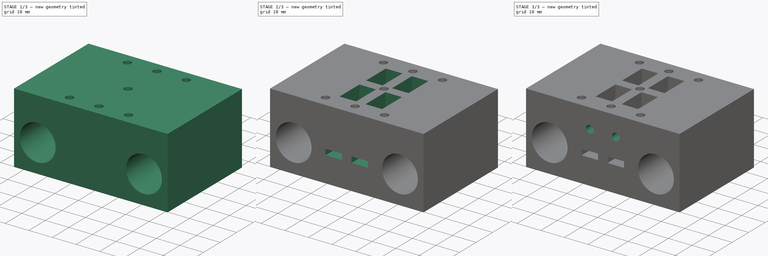
[diagram: build sequence overview — one tinted view per stage of 3, left to right]
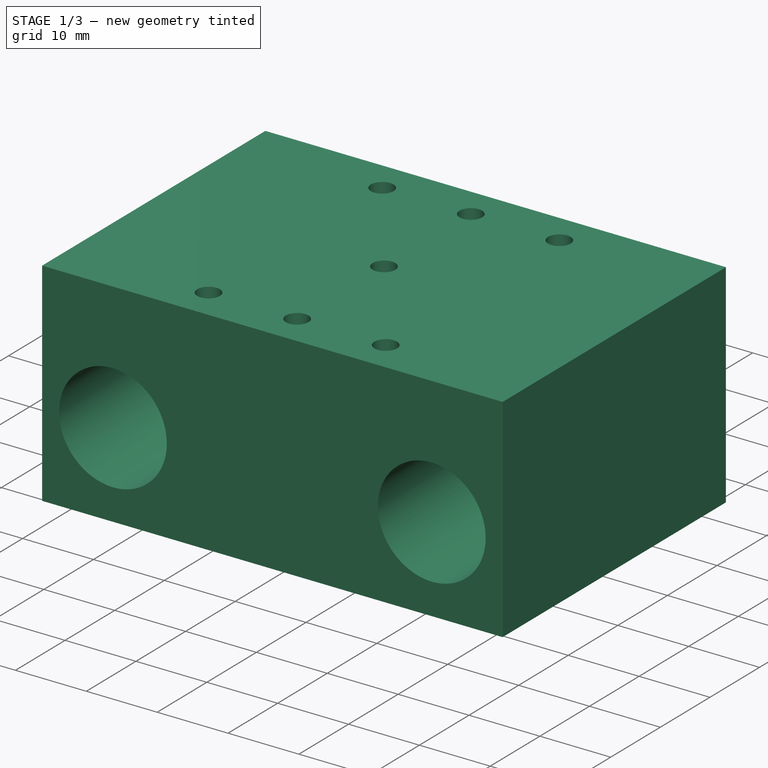
[diagram: stage 1 of 3 — iso view after this stage's code; geometry added in this stage tinted green]
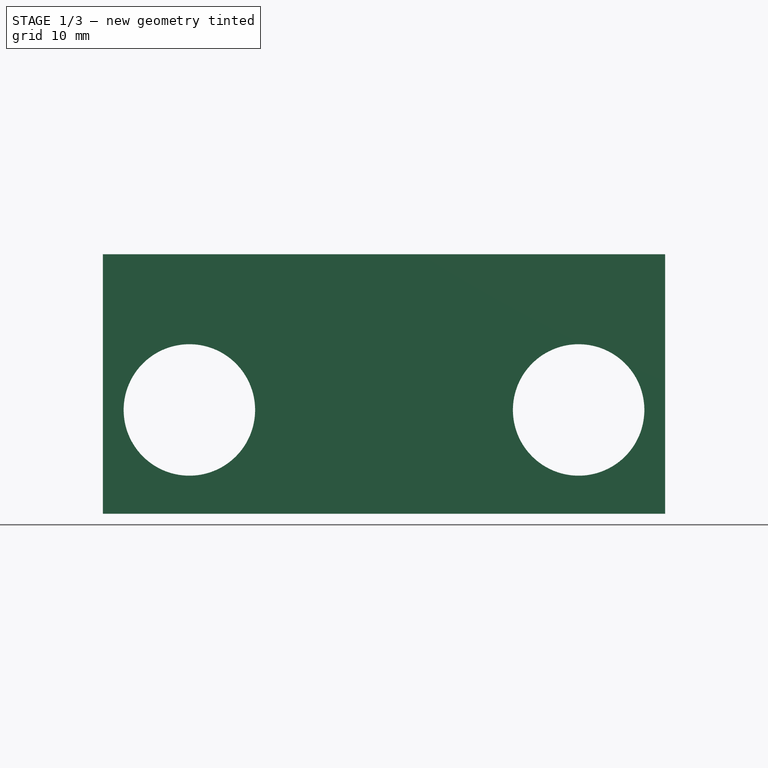
[diagram: stage 1 of 3 — front view after this stage's code; geometry added in this stage tinted green]
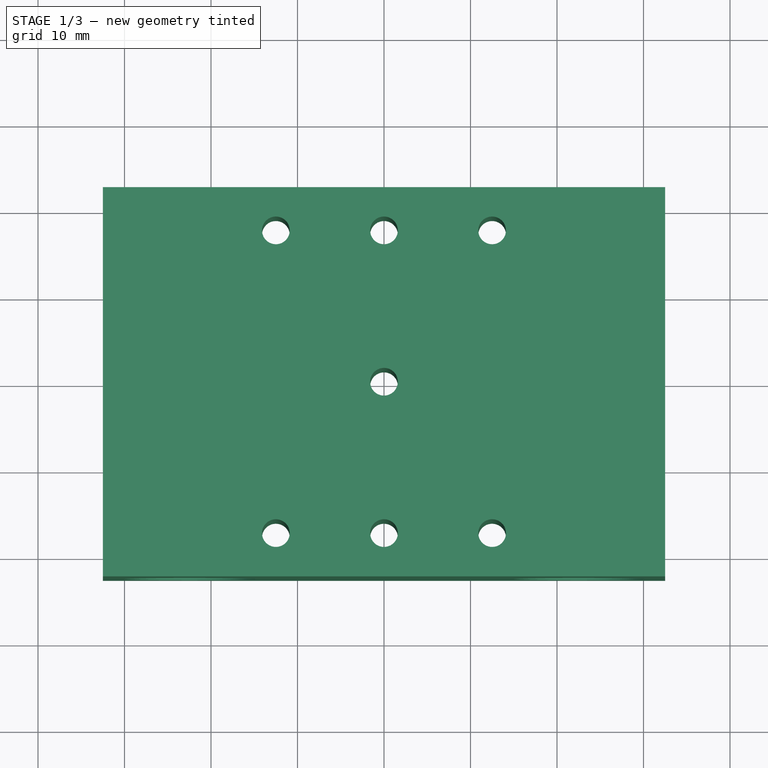
[diagram: stage 1 of 3 — top view after this stage's code; geometry added in this stage tinted green]
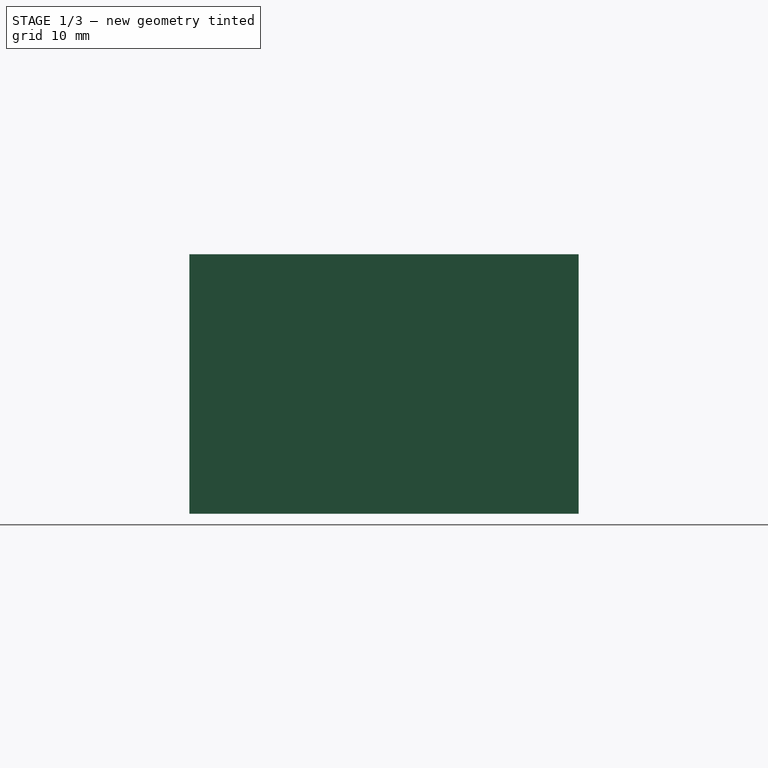
[diagram: stage 1 of 3 — right view after this stage's code; geometry added in this stage tinted green]
FCSTD DOCUMENT  (FreeCAD 0.19R20209 (Git))
Label: X-Axel-Bearing_030
License: Creative Commons Attribution
LicenseURL: http://creativecommons.org/licenses/by/4.0/
objects: Sketcher::SketchObject×6, PartDesign::Pocket×5, PartDesign::Plane×3, PartDesign::Pad×1, PartDesign::Body×1
note: 22 computed .brp shape members not serialized (recipe doc carries the construction recipe); baked Part::Feature solids carry a one-line shape summary decoded from their .brp

FEATURE [Sketcher::SketchObject] Sketch
  MapMode = 5
  Placement = pos=(0,0,0) rot=(1,0,0;1.5708rad)
  Support = -> [XZ_Plane]
  sketch-geometry (6):
    g0: LineSegment StartX=-32.5 StartY=18 StartZ=0 EndX=32.5 EndY=18 EndZ=0
    g1: LineSegment StartX=32.5 StartY=18 StartZ=0 EndX=32.5 EndY=-12 EndZ=0
    g2: LineSegment StartX=32.5 StartY=-12 StartZ=0 EndX=-32.5 EndY=-12 EndZ=0
    g3: LineSegment StartX=-32.5 StartY=-12 StartZ=0 EndX=-32.5 EndY=18 EndZ=0
    g4: Circle CenterX=-22.5 CenterY=0 CenterZ=0 NormalX=0 NormalY=0 NormalZ=1 AngleXU=0 Radius=7.6
    g5: Circle CenterX=22.5 CenterY=0 CenterZ=0 NormalX=0 NormalY=0 NormalZ=1 AngleXU=0 Radius=7.6
  constraints (16):
    c: Coincident(g0,g1)
    c: Coincident(g1,g2)
    c: Coincident(g2,g3)
    c: Coincident(g3,g0)
    c: Horizontal(g0)
    c: Vertical(g1)
    c: Vertical(g3)
    c: Symmetric(g2,g1,g-2)
    c: DistanceX(g2,g2) = 65
    c: DistanceY(g3,g3) = 30
    c: DistanceY(g2,g-1) = 12
    c: Equal(g5,g4)
    c: Horizontal(g5,g4)
    c: DistanceX(g4,g5) = 45
    c: Symmetric(g4,g5,g-1)
    c: Diameter(g4) = 15.2
FEATURE [PartDesign::Pad] Pad
  Length = 45
  Length2 = 100
  Midplane = true
  Placement = pos=(0,0,0) rot=(1,0,0;1.5708rad)
  Profile = -> Sketch
  Refine = true
  Type = 0
FEATURE [Sketcher::SketchObject] Sketch001
  MapMode = 5
  Support = -> [XY_Plane]
  sketch-geometry (11):
    g0: LineSegment [constr] StartX=-12.5 StartY=17.5 StartZ=0 EndX=12.5 EndY=17.5 EndZ=0
    g1: LineSegment [constr] StartX=12.5 StartY=17.5 StartZ=0 EndX=12.5 EndY=-17.5 EndZ=0
    g2: LineSegment [constr] StartX=12.5 StartY=-17.5 StartZ=0 EndX=-12.5 EndY=-17.5 EndZ=0
    g3: LineSegment [constr] StartX=-12.5 StartY=-17.5 StartZ=0 EndX=-12.5 EndY=17.5 EndZ=0
    g4: Circle CenterX=-12.5 CenterY=17.5 CenterZ=0 NormalX=0 NormalY=0 NormalZ=1 AngleXU=0 Radius=1.6
    g5: Circle CenterX=12.5 CenterY=17.5 CenterZ=0 NormalX=0 NormalY=0 NormalZ=1 AngleXU=0 Radius=1.6
    g6: Circle CenterX=0 CenterY=0 CenterZ=0 NormalX=0 NormalY=0 NormalZ=1 AngleXU=0 Radius=1.6
    g7: Circle CenterX=-12.5 CenterY=-17.5 CenterZ=0 NormalX=0 NormalY=0 NormalZ=1 AngleXU=0 Radius=1.6
    g8: Circle CenterX=12.5 CenterY=-17.5 CenterZ=0 NormalX=0 NormalY=0 NormalZ=1 AngleXU=0 Radius=1.6
    g9: Circle CenterX=3e-16 CenterY=17.5 CenterZ=0 NormalX=0 NormalY=0 NormalZ=1 AngleXU=0 Radius=1.6
    g10: Circle CenterX=1e-16 CenterY=-17.5 CenterZ=0 NormalX=0 NormalY=0 NormalZ=1 AngleXU=0 Radius=1.6
  constraints (25):
    c: Coincident(g0,g1)
    c: Coincident(g1,g2)
    c: Coincident(g2,g3)
    c: Coincident(g3,g0)
    c: Horizontal(g0)
    c: Horizontal(g2)
    c: Vertical(g1)
    c: Vertical(g3)
    c: Symmetric(g1,g0,g-1)
    c: DistanceX(g0,g0) = 25
    c: DistanceY(g3,g3) = 35
    c: Equal(g4,g5)
    c: Equal(g5,g6)
    c: Equal(g6,g7)
    c: Equal(g7,g8)
    c: Equal(g8,g9)
    c: Equal(g9,g10)
    c: Diameter(g4) = 3.2
    c: Coincident(g4,g0)
    c: Coincident(g5,g0)
    c: Coincident(g6,g-1)
    c: Coincident(g7,g2)
    c: Coincident(g8,g1)
    c: Symmetric(g4,g5,g9)
    c: Symmetric(g7,g8,g10)
FEATURE [PartDesign::Pocket] Pocket
  BaseFeature = -> Pad
  Length = 5
  Length2 = 100
  Midplane = true
  Placement = pos=(0,0,0) rot=(1,0,0;1.5708rad)
  Profile = -> Sketch001
  Refine = true
  Type = 1
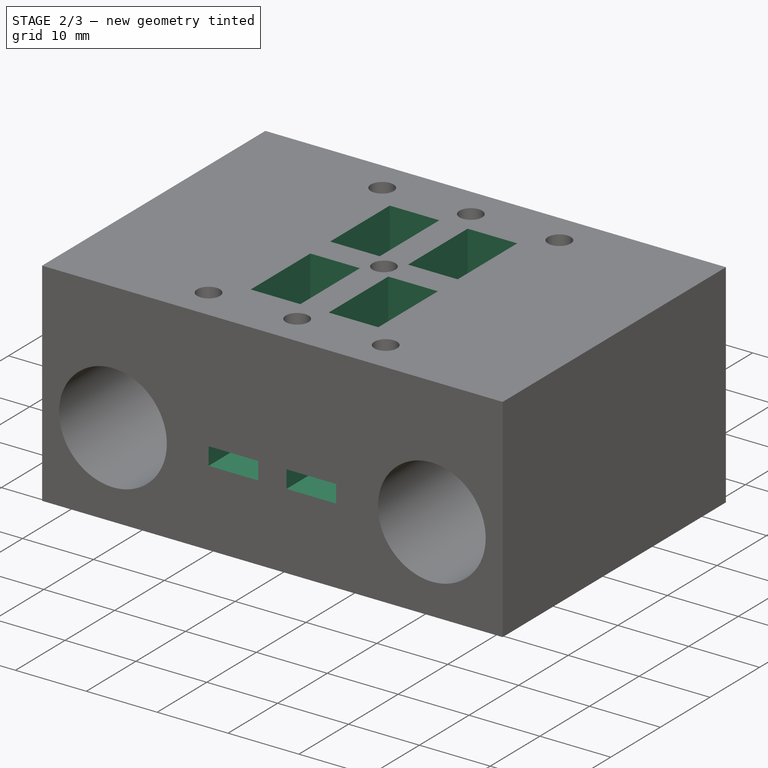
[diagram: stage 2 of 3 — iso view after this stage's code; geometry added in this stage tinted green]
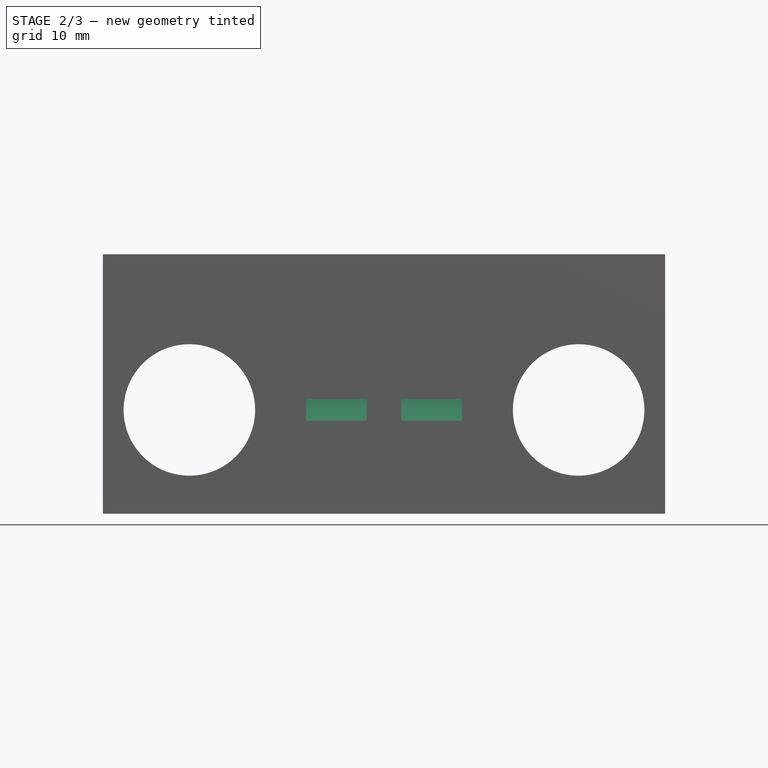
[diagram: stage 2 of 3 — front view after this stage's code; geometry added in this stage tinted green]
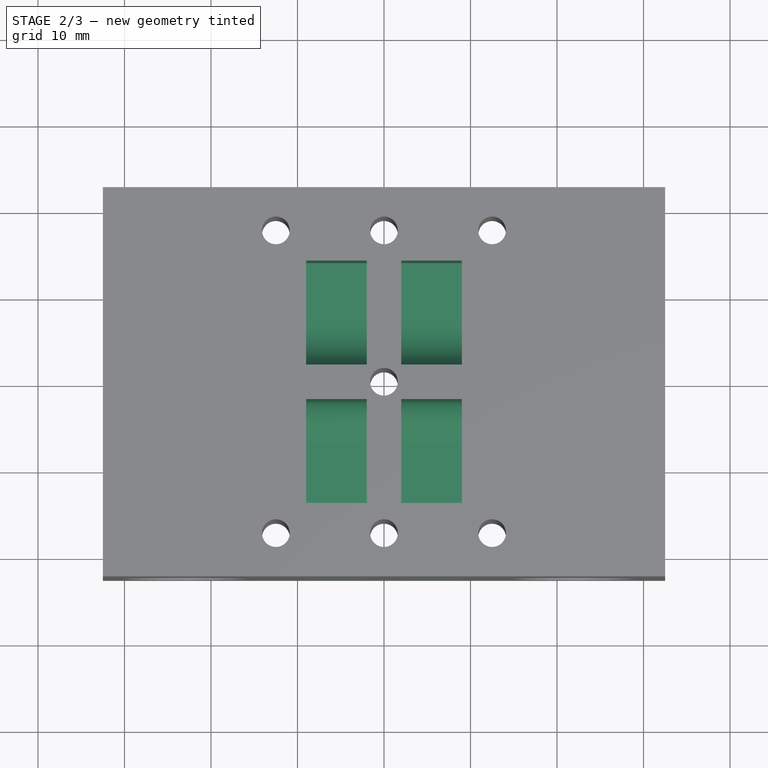
[diagram: stage 2 of 3 — top view after this stage's code; geometry added in this stage tinted green]
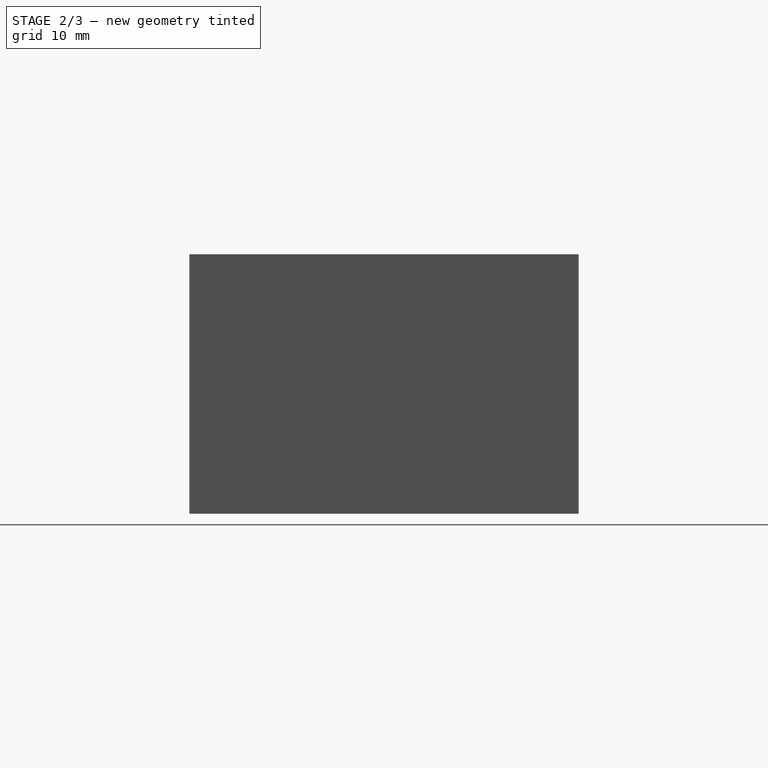
[diagram: stage 2 of 3 — right view after this stage's code; geometry added in this stage tinted green]
FEATURE [PartDesign::Plane] DatumPlane
  AttachmentOffset = pos=(0,0,2) rot=(0,0,1;0rad)
  Length = 60
  MapMode = 5
  Placement = pos=(2,-4e-16,4e-16) rot=(0.57735,0.57735,0.57735;2.0944rad)
  ResizeMode = 0
  Support = -> [YZ_Plane]
  Width = 60
FEATURE [Sketcher::SketchObject] Sketch002
  ExternalGeometry = -> [Pocket]
  MapMode = 5
  Placement = pos=(2,-4e-16,4e-16) rot=(0.57735,0.57735,0.57735;2.0944rad)
  Support = -> [DatumPlane]
  sketch-geometry (14):
    g0: ArcOfCircle CenterX=-7 CenterY=3.75 CenterZ=0 NormalX=0 NormalY=0 NormalZ=1 AngleXU=0 Radius=5 StartAngle=4.71239 EndAngle=6.28319
    g1: LineSegment StartX=-7 StartY=-1.25 StartZ=0 EndX=-22.5 EndY=-1.25 EndZ=0
    g2: LineSegment StartX=-22.5 StartY=-1.25 StartZ=0 EndX=-22.5 EndY=1.25 EndZ=0
    g3: LineSegment StartX=-22.5 StartY=1.25 StartZ=0 EndX=-14 EndY=1.25 EndZ=0
    g4: LineSegment StartX=-14 StartY=1.25 StartZ=0 EndX=-14 EndY=18 EndZ=0
    g5: LineSegment StartX=-14 StartY=18 StartZ=0 EndX=-2 EndY=18 EndZ=0
    g6: LineSegment StartX=-2 StartY=18 StartZ=0 EndX=-2 EndY=3.75 EndZ=0
    g7: ArcOfCircle CenterX=7 CenterY=3.75 CenterZ=0 NormalX=0 NormalY=0 NormalZ=1 AngleXU=0 Radius=5 StartAngle=3.14159 EndAngle=4.71239
    g8: LineSegment StartX=2 StartY=3.75 StartZ=0 EndX=2 EndY=18 EndZ=0
    g9: LineSegment StartX=2 StartY=18 StartZ=0 EndX=14 EndY=18 EndZ=0
    g10: LineSegment StartX=14 StartY=18 StartZ=0 EndX=14 EndY=1.25 EndZ=0
    g11: LineSegment StartX=14 StartY=1.25 StartZ=0 EndX=22.5 EndY=1.25 EndZ=0
    g12: LineSegment StartX=22.5 StartY=1.25 StartZ=0 EndX=22.5 EndY=-1.25 EndZ=0
    g13: LineSegment StartX=22.5 StartY=-1.25 StartZ=0 EndX=7 EndY=-1.25 EndZ=0
  constraints (42):
    c: Angle(g0) = 1.5708
    c: Horizontal(g0,g0)
    c: Radius(g0) = 5
    c: DistanceX(g0,g-1) = 2
    c: Horizontal(g1)
    c: Coincident(g1,g2)
    c: Coincident(g2,g3)
    c: Horizontal(g3)
    c: Coincident(g3,g4)
    c: Vertical(g4)
    c: Coincident(g4,g5)
    c: Horizontal(g5)
    c: Coincident(g5,g6)
    c: Vertical(g6)
    c: Symmetric(g2,g1,g-1)
    c: DistanceY(g2,g2) = 2.5
    c: Coincident(g0,g1)
    c: Coincident(g6,g0)
    c: DistanceX(g5,g5) = 12
    c: PointOnObject(g4,g-3)
    c: Vertical(g2,g-3)
    c: Horizontal(g7,g7)
    c: Equal(g0,g7)
    c: Angle(g7) = 1.5708
    c: Symmetric(g7,g0,g-2)
    c: Vertical(g8)
    c: Coincident(g8,g9)
    c: Horizontal(g9)
    c: Coincident(g9,g10)
    c: Vertical(g10)
    c: Coincident(g10,g11)
    c: Horizontal(g11)
    c: Coincident(g11,g12)
    c: Vertical(g12)
    c: Coincident(g12,g13)
    c: Horizontal(g13)
    c: Equal(g12,g2)
    c: Coincident(g13,g7)
    c: Equal(g9,g5)
    c: Coincident(g8,g7)
    c: Horizontal(g8,g4)
    c: Vertical(g-3,g11)
FEATURE [PartDesign::Pocket] Pocket001
  BaseFeature = -> Pocket
  Length = 7
  Length2 = 100
  Placement = pos=(0,0,0) rot=(1,0,0;1.5708rad)
  Profile = -> Sketch002
  Refine = true
  Reversed = true
  Type = 0
FEATURE [PartDesign::Plane] DatumPlane001
  AttachmentOffset = pos=(0,0,-2) rot=(0,0,1;0rad)
  Length = 60
  MapMode = 5
  Placement = pos=(-2,4e-16,-4e-16) rot=(0.57735,0.57735,0.57735;2.0944rad)
  ResizeMode = 0
  Support = -> [YZ_Plane]
  Width = 60
FEATURE [Sketcher::SketchObject] Sketch003
  ExternalGeometry = -> [Pocket001]
  MapMode = 5
  Placement = pos=(-2,4e-16,-4e-16) rot=(0.57735,0.57735,0.57735;2.0944rad)
  Support = -> [DatumPlane001]
  sketch-geometry (14):
    g0: LineSegment StartX=-7 StartY=-1.25 StartZ=0 EndX=-22.5 EndY=-1.25 EndZ=0
    g1: LineSegment StartX=-22.5 StartY=-1.25 StartZ=0 EndX=-22.5 EndY=1.25 EndZ=0
    g2: LineSegment StartX=-22.5 StartY=1.25 StartZ=0 EndX=-14 EndY=1.25 EndZ=0
    g3: LineSegment StartX=-14 StartY=1.25 StartZ=0 EndX=-14 EndY=18 EndZ=0
    g4: LineSegment StartX=-14 StartY=18 StartZ=0 EndX=-2 EndY=18 EndZ=0
    g5: LineSegment StartX=-2 StartY=18 StartZ=0 EndX=-2 EndY=3.75 EndZ=0
    g6: LineSegment StartX=2 StartY=3.75 StartZ=0 EndX=2 EndY=18 EndZ=0
    g7: LineSegment StartX=2 StartY=18 StartZ=0 EndX=14 EndY=18 EndZ=0
    g8: LineSegment StartX=14 StartY=18 StartZ=0 EndX=14 EndY=1.25 EndZ=0
    g9: LineSegment StartX=14 StartY=1.25 StartZ=0 EndX=22.5 EndY=1.25 EndZ=0
    g10: LineSegment StartX=22.5 StartY=1.25 StartZ=0 EndX=22.5 EndY=-1.25 EndZ=0
    g11: LineSegment StartX=22.5 StartY=-1.25 StartZ=0 EndX=7 EndY=-1.25 EndZ=0
    g12: ArcOfCircle CenterX=-7 CenterY=3.75 CenterZ=0 NormalX=0 NormalY=0 NormalZ=1 AngleXU=0 Radius=5 StartAngle=4.71239 EndAngle=6.28319
    g13: ArcOfCircle CenterX=7 CenterY=3.75 CenterZ=0 NormalX=0 NormalY=0 NormalZ=1 AngleXU=0 Radius=5 StartAngle=3.14159 EndAngle=4.71239
  constraints (38):
    c: Horizontal(g0)
    c: Coincident(g0,g1)
    c: Vertical(g1)
    c: Coincident(g1,g2)
    c: Coincident(g2,g3)
    c: Vertical(g3)
    c: Coincident(g3,g4)
    c: Horizontal(g4)
    c: Coincident(g4,g5)
    c: Vertical(g5)
    c: Vertical(g6)
    c: Coincident(g6,g7)
    c: Horizontal(g7)
    c: Coincident(g7,g8)
    c: Vertical(g8)
    c: Coincident(g8,g9)
    c: Horizontal(g9)
    c: Coincident(g9,g10)
    c: Vertical(g10)
    c: Coincident(g10,g11)
    c: Horizontal(g11)
    c: Coincident(g6,g-4)
    c: Coincident(g-3,g5)
    c: Coincident(g0,g-3)
    c: Coincident(g11,g-4)
    c: Coincident(g2,g-6)
    c: Coincident(g1,g-6)
    c: Horizontal(g9,g1)
    c: Vertical(g9,g-5)
    c: Equal(g2,g9)
    c: Horizontal(g-5,g3)
    c: Horizontal(g3,g6)
    c: Coincident(g12,g5)
    c: Angle(g12) = 1.5708
    c: Coincident(g12,g-3)
    c: Angle(g13) = 1.5708
    c: Coincident(g13,g11)
    c: Coincident(g13,g-4)
FEATURE [PartDesign::Pocket] Pocket002
  BaseFeature = -> Pocket001
  Length = 7
  Length2 = 100
  Placement = pos=(0,0,0) rot=(1,0,0;1.5708rad)
  Profile = -> Sketch003
  Refine = true
  Type = 0
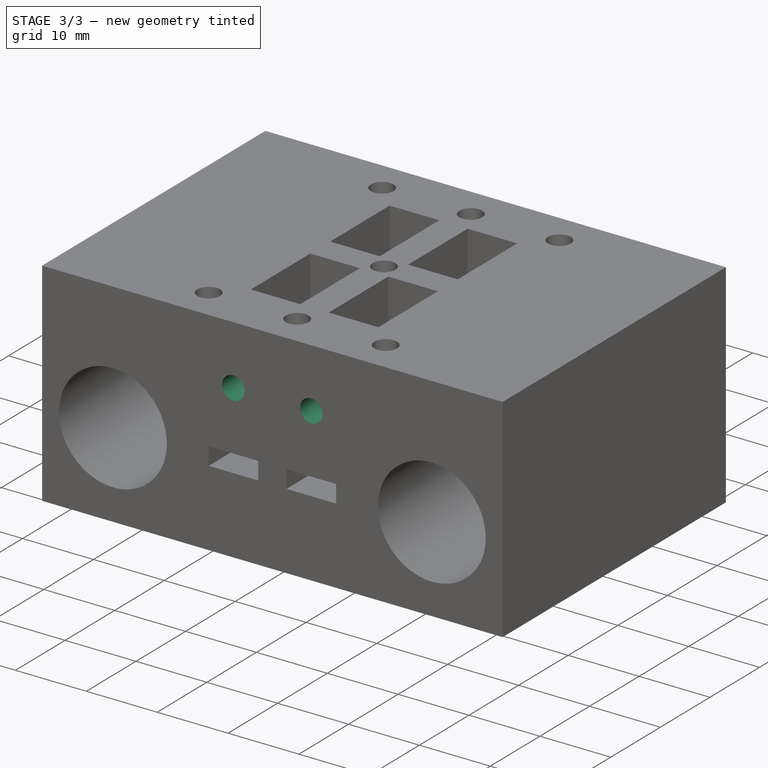
[diagram: stage 3 of 3 — iso view after this stage's code; geometry added in this stage tinted green]
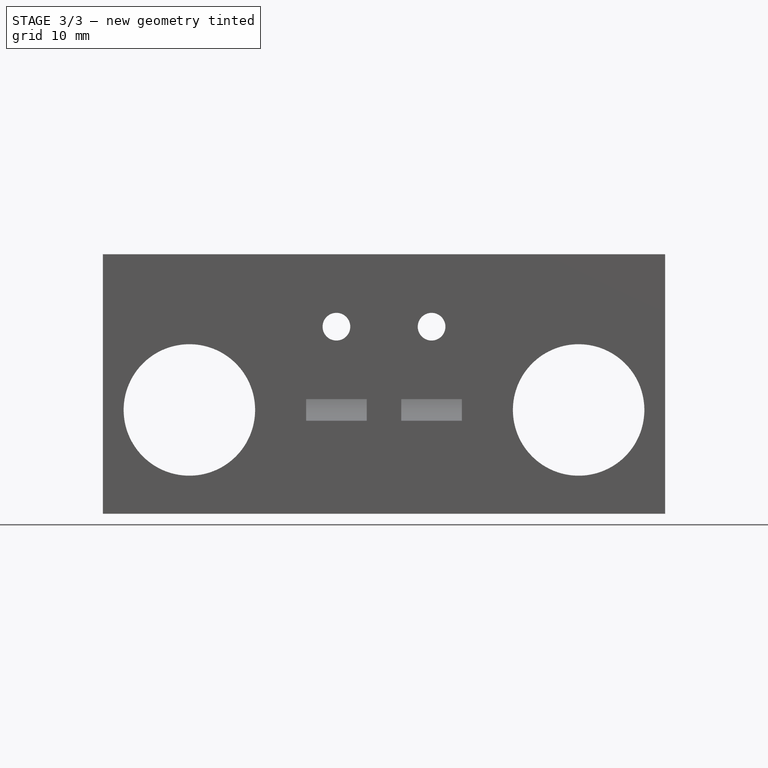
[diagram: stage 3 of 3 — front view after this stage's code; geometry added in this stage tinted green]
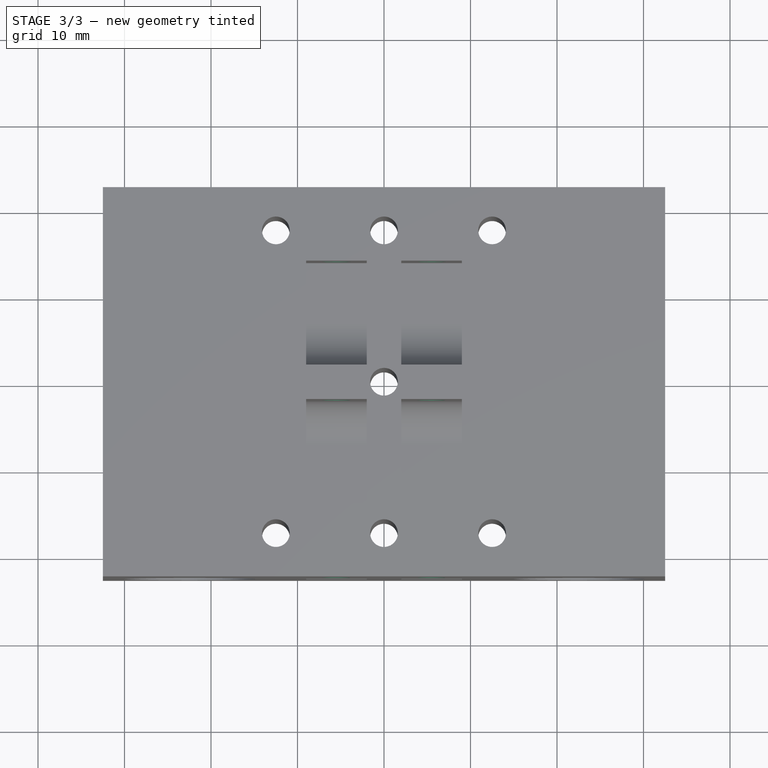
[diagram: stage 3 of 3 — top view after this stage's code; geometry added in this stage tinted green]
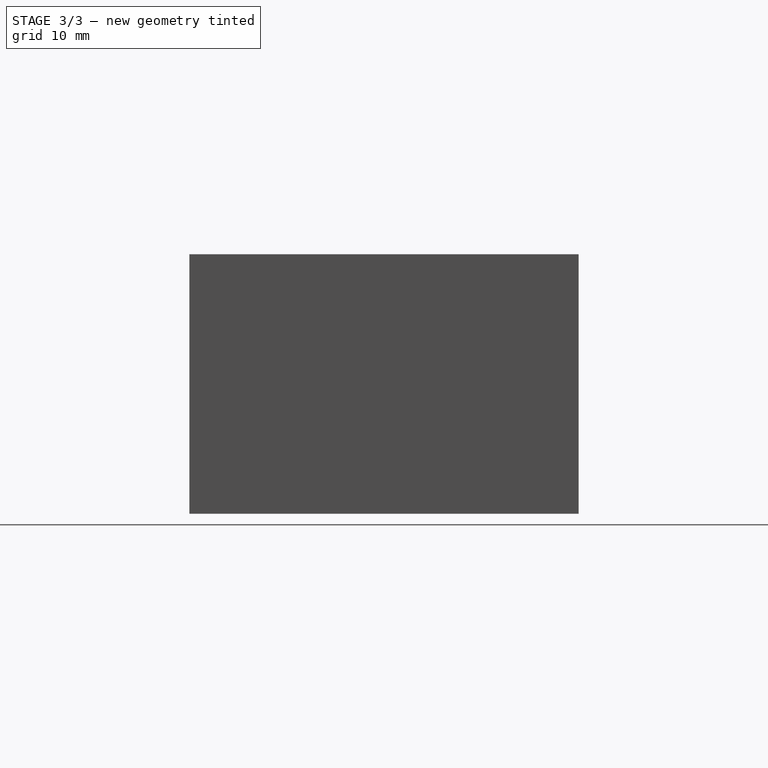
[diagram: stage 3 of 3 — right view after this stage's code; geometry added in this stage tinted green]
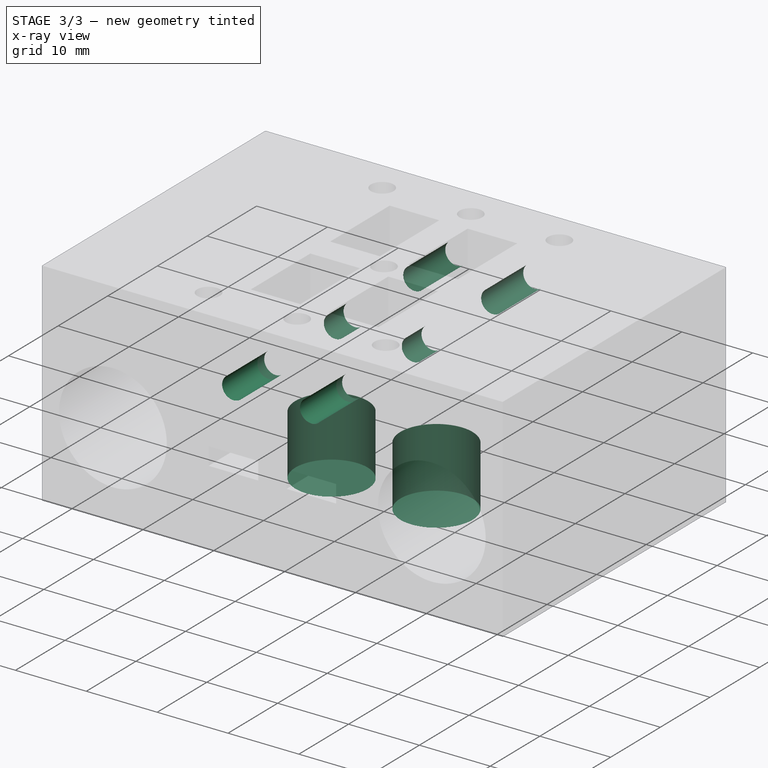
[diagram: stage 3 of 3 — x-ray composite at the iso view; earlier geometry ghosted, this stage's added geometry solid]
FEATURE [PartDesign::Plane] DatumPlane002
  AttachmentOffset = pos=(0,0,-11) rot=(0,0,1;0rad)
  Length = 76.4018
  MapMode = 5
  Placement = pos=(0,0,-11) rot=(0,0,1;0rad)
  ResizeMode = 0
  Support = -> [XY_Plane]
  Width = 61.4018
FEATURE [Sketcher::SketchObject] Sketch004
  MapMode = 5
  Placement = pos=(0,0,-11) rot=(0,0,1;0rad)
  Support = -> [DatumPlane002]
  sketch-geometry (2):
    g0: Circle CenterX=-7.4 CenterY=0 CenterZ=0 NormalX=0 NormalY=0 NormalZ=1 AngleXU=0 Radius=5.1
    g1: Circle CenterX=7.4 CenterY=0 CenterZ=0 NormalX=0 NormalY=0 NormalZ=1 AngleXU=0 Radius=5.1
  constraints (5):
    c: Equal(g1,g0)
    c: Diameter(g0) = 10.2
    c: Horizontal(g1,g0)
    c: Symmetric(g0,g1,g-1)
    c: DistanceX(g0,g1) = 14.8
FEATURE [PartDesign::Pocket] Pocket003
  BaseFeature = -> Pocket002
  Length = 8.5
  Length2 = 100
  Placement = pos=(0,0,0) rot=(1,0,0;1.5708rad)
  Profile = -> Sketch004
  Refine = true
  Reversed = true
  Type = 0
FEATURE [Sketcher::SketchObject] Sketch005
  ExternalGeometry = -> [Pocket003]
  MapMode = 5
  Placement = pos=(0,0,0) rot=(1,0,0;1.5708rad)
  Support = -> [XZ_Plane]
  sketch-geometry (4):
    g0: GeomPoint X=-5.5 Y=9.625 Z=0
    g1: GeomPoint X=5.5 Y=9.625 Z=0
    g2: Circle CenterX=-5.5 CenterY=9.625 CenterZ=0 NormalX=0 NormalY=0 NormalZ=1 AngleXU=0 Radius=1.6
    g3: Circle CenterX=5.5 CenterY=9.625 CenterZ=0 NormalX=0 NormalY=0 NormalZ=1 AngleXU=0 Radius=1.6
  constraints (6):
    c: Symmetric(g-4,g-3,g0)
    c: Symmetric(g-6,g-5,g1)
    c: Equal(g3,g2)
    c: Diameter(g2) = 3.2
    c: Coincident(g3,g1)
    c: Coincident(g2,g0)
FEATURE [PartDesign::Pocket] Pocket004
  BaseFeature = -> Pocket003
  Length = 5
  Length2 = 100
  Midplane = true
  Placement = pos=(0,0,0) rot=(1,0,0;1.5708rad)
  Profile = -> Sketch005
  Refine = true
  Type = 1
FEATURE [PartDesign::Body] Body
  Group = -> [Sketch,Pad,Sketch001,Pocket,DatumPlane,Sketch002,Pocket001,DatumPlane001,Sketch003,Pocket002,DatumPlane002,Sketch004,Pocket003,Sketch005,Pocket004]
  Origin = -> Origin
  Tip = -> Pocket004
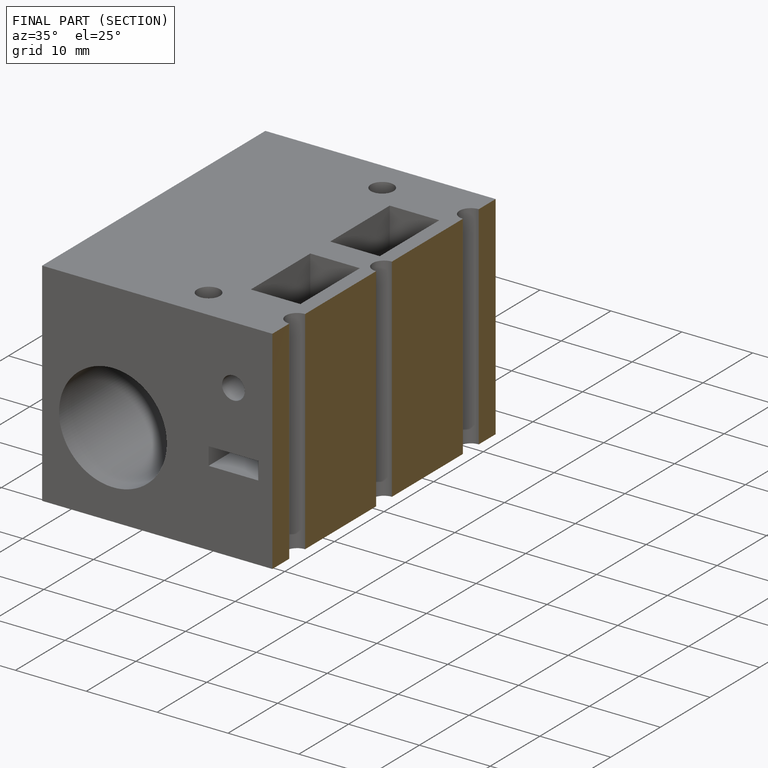
[diagram: finished part — half-section view (interior)]
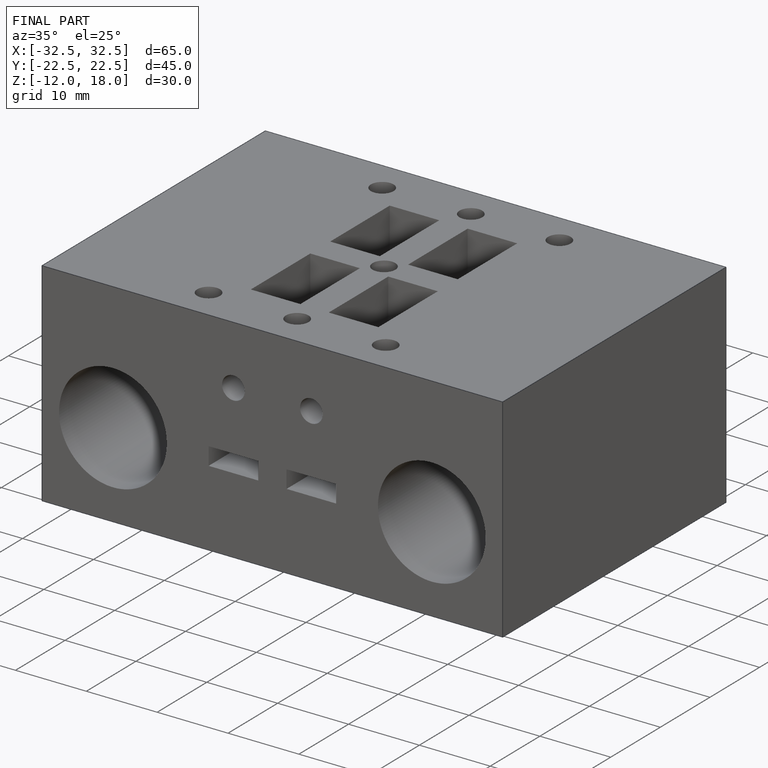
[diagram: finished part — iso view with bounding-box wireframe]
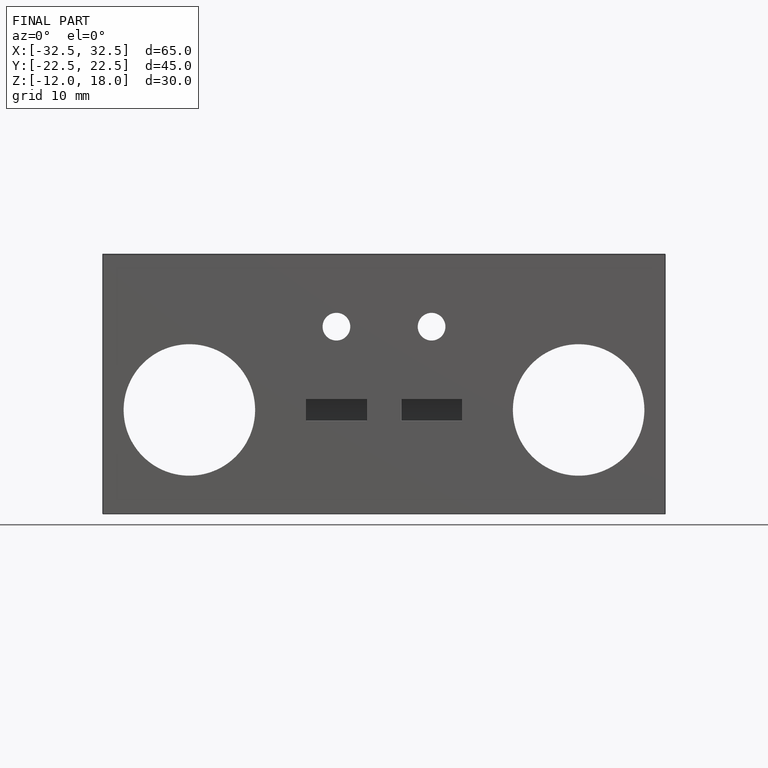
[diagram: finished part — front view with bounding-box wireframe]
